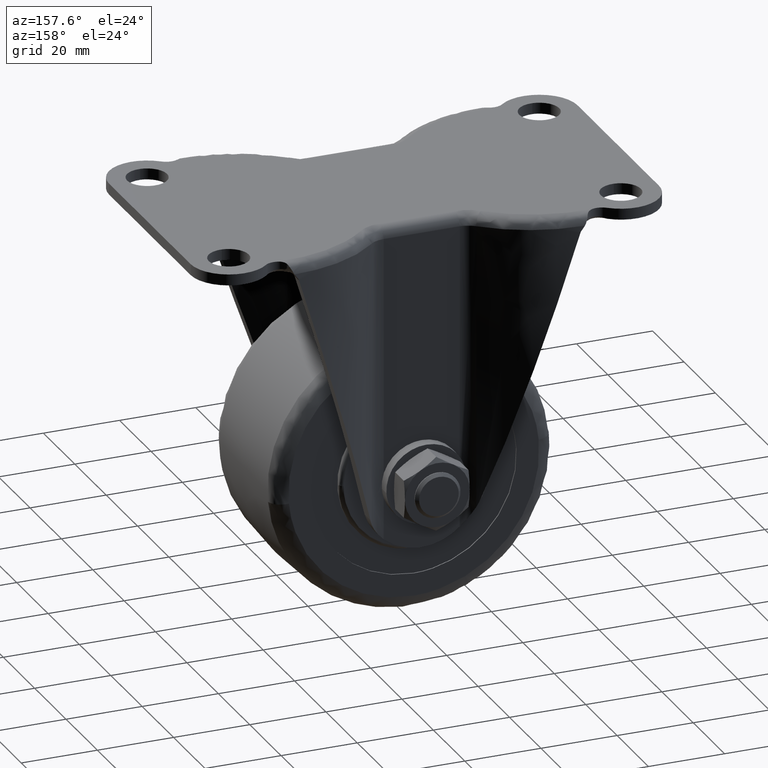
[diagram: clean part render]
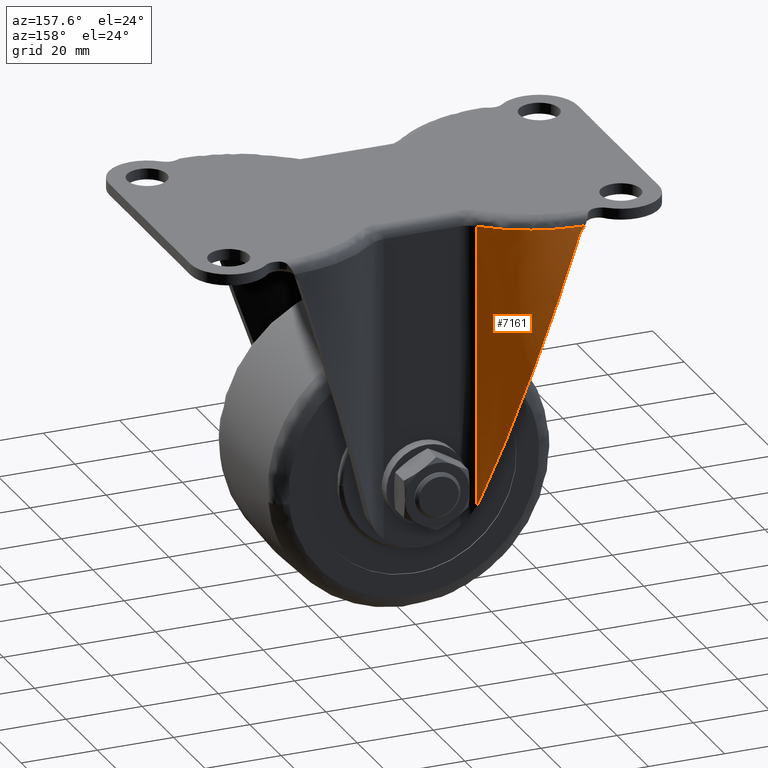
[diagram: same view with one face highlighted and labeled with its STEP entity id]
A machine part, auxiliary view. The second image highlights one B-rep face of the part: STEP entity #7161.
In plain terms, the highlighted face is a freeform B-spline surface patch.
Its self-contained STEP definition (entity closure, byte-faithful):
#6304=CARTESIAN_POINT('',(-13.742971939924139,25.495297672985849,-2.900000000000000));
#6305=VERTEX_POINT('',#6304);
#6389=CARTESIAN_POINT('',(-38.142476741519751,35.489472741861150,-2.804612686576450));
#6390=VERTEX_POINT('',#6389);
#6391=CARTESIAN_POINT('',(-38.142476741519751,35.489472741861150,-2.804612686576450));
#6392=CARTESIAN_POINT('',(-37.889986036489631,35.484194766984508,-2.805968959177427));
#6393=CARTESIAN_POINT('',(-37.378257885570967,35.466872849879479,-2.808699484473210));
#6394=CARTESIAN_POINT('',(-36.610753019532289,35.426009044726896,-2.812754199408605));
#6395=CARTESIAN_POINT('',(-35.843083032022797,35.368606712102000,-2.816764825637871));
#6396=CARTESIAN_POINT('',(-35.085228250160441,35.296141537058062,-2.820681323288400));
#6397=CARTESIAN_POINT('',(-34.337462807635752,35.209062877132851,-2.824503397319160));
#6398=CARTESIAN_POINT('',(-33.600039317631513,35.107952894323482,-2.828231125950665));
#6399=CARTESIAN_POINT('',(-32.873189423926917,34.993356110447642,-2.831864489054932));
#6400=CARTESIAN_POINT('',(-32.157124361847693,34.865823508518069,-2.835403492417540));
#6401=CARTESIAN_POINT('',(-31.452035528487990,34.725900150829290,-2.838848135003839));
#6402=CARTESIAN_POINT('',(-30.758095060417968,34.574127719651912,-2.842198417582271));
#6403=CARTESIAN_POINT('',(-30.075456417495349,34.411043170381070,-2.845454340455176));
#6404=CARTESIAN_POINT('',(-29.404254971379348,34.237178450148413,-2.848615904053464));
#6405=CARTESIAN_POINT('',(-28.744608597435040,34.053059976801457,-2.851683108787760));
#6406=CARTESIAN_POINT('',(-28.096618268777341,33.859208220863749,-2.854655955082932));
#6407=CARTESIAN_POINT('',(-27.460368651270020,33.656137299304213,-2.857534443373968));
#6408=CARTESIAN_POINT('',(-26.835928698360291,33.444354604082122,-2.860318574106646));
#6409=CARTESIAN_POINT('',(-26.223352244692311,33.224360458374768,-2.863008347740793));
#6410=CARTESIAN_POINT('',(-25.622678597505590,32.996647801279671,-2.865603764749763));
#6411=CARTESIAN_POINT('',(-25.033933124885280,32.761701899692923,-2.868104825621645));
#6412=CARTESIAN_POINT('',(-24.457127839990370,32.520000086598252,-2.870511530865213));
#6413=CARTESIAN_POINT('',(-23.892261980444950,32.272011524851813,-2.872823881003362));
#6414=CARTESIAN_POINT('',(-23.339322582133089,32.018196995577917,-2.875041876584428));
#6415=CARTESIAN_POINT('',(-22.798285046694009,31.759008710278071,-2.877165518177298));
#6416=CARTESIAN_POINT('',(-22.269113702067159,31.494890145757420,-2.879194806376559));
#6417=CARTESIAN_POINT('',(-21.751762355488239,31.226275900971920,-2.881129741804410));
#6418=CARTESIAN_POINT('',(-21.246174838388551,30.953591574903928,-2.882970325113363));
#6419=CARTESIAN_POINT('',(-20.752285542696800,30.677253664576170,-2.884716556987578));
#6420=CARTESIAN_POINT('',(-20.270019948090169,30.397669482323810,-2.886368438148669));
#6421=CARTESIAN_POINT('',(-19.799295139788459,30.115237091446112,-2.887925969355947));
#6422=CARTESIAN_POINT('',(-19.340020316515311,29.830345259384469,-2.889389151411947));
#6423=CARTESIAN_POINT('',(-18.892097288343770,29.543373427528831,-2.890757985166114));
#6424=CARTESIAN_POINT('',(-18.455420963991461,29.254691696968660,-2.892032471518658));
#6425=CARTESIAN_POINT('',(-18.029879827867301,28.964660828777379,-2.893212611419794));
#6426=CARTESIAN_POINT('',(-17.615356404664539,28.673632260133171,-2.894298405907504));
#6427=CARTESIAN_POINT('',(-17.211727718587671,28.381948127759600,-2.895289855981206));
#6428=CARTESIAN_POINT('',(-16.818865720640211,28.089941325976760,-2.896186963098024));
#6429=CARTESIAN_POINT('',(-16.436637780000481,27.797935496469339,-2.896989727389571));
#6430=CARTESIAN_POINT('',(-16.064906889861401,27.506245320323391,-2.897698154182517));
#6431=CARTESIAN_POINT('',(-15.703532857958900,27.215175762230839,-2.898312230340498));
#6432=CARTESIAN_POINT('',(-15.352369867623541,26.925025167560619,-2.898832010219794));
#6433=CARTESIAN_POINT('',(-15.011277161326319,26.636074416634909,-2.899257303716941));
#6434=CARTESIAN_POINT('',(-14.680082058804000,26.348626708164549,-2.899588808037514));
#6435=CARTESIAN_POINT('',(-14.358715773026280,26.062863781766058,-2.899824004066771));
#6436=CARTESIAN_POINT('',(-14.046722901800999,25.779367455101269,-2.899972027403961));
#6437=CARTESIAN_POINT('',(-13.843533062025060,25.589343057625889,-2.899990739269998));
#6438=CARTESIAN_POINT('',(-13.742971939924139,25.495297672985849,-2.900000000000000));
#6439=B_SPLINE_CURVE_WITH_KNOTS('',3,(#6391,#6392,#6393,#6394,#6395,#6396,#6397,#6398,#6399,#6400,#6401,#6402,#6403,#6404,#6405,#6406,#6407,#6408,#6409,#6410,#6411,#6412,#6413,#6414,#6415,#6416,#6417,#6418,#6419,#6420,#6421,#6422,#6423,#6424,#6425,#6426,#6427,#6428,#6429,#6430,#6431,#6432,#6433,#6434,#6435,#6436,#6437,#6438),.UNSPECIFIED.,.F.,.U.,(4,1,1,1,1,1,1,1,1,1,1,1,1,1,1,1,1,1,1,1,1,1,1,1,1,1,1,1,1,1,1,1,1,1,1,1,1,1,1,1,1,1,1,1,1,4),(0.029661912956623,0.056924580552807,0.084928476902993,0.112626776954118,0.140019480454794,0.167106587161676,0.193888096839647,0.220364009262002,0.246534324210660,0.272399041476372,0.297958160858954,0.323211682167526,0.348159605220767,0.372801929847195,0.397138655885444,0.421169783184585,0.444895311604446,0.468315241015961,0.491429571301549,0.514238302355503,0.536741434084419,0.558938966407648,0.580830899257782,0.602417232581171,0.623697966338483,0.644673100505299,0.665342635072755,0.685706570048229,0.705764905456089,0.725517641338487,0.744964777756221,0.764106314789671,0.782942252539800,0.801472591129248,0.819697330703510,0.837616471432219,0.855230013510536,0.872537957160671,0.889540302633531,0.906237050210522,0.922628200205525,0.938713752967050,0.954493708880605,0.969968068371299,0.985136831906701,1.0),.UNSPECIFIED.);
#6440=EDGE_CURVE('',#6390,#6305,#6439,.T.);
#7087=CARTESIAN_POINT('',(-39.114222603160187,35.499704377283287,-79.378541905505799));
#7088=CARTESIAN_POINT('',(-39.114222603160187,35.499704377283287,-0.890264456103225));
#7089=CARTESIAN_POINT('',(-23.662741238837508,35.561639504932081,-79.378541905505813));
#7090=CARTESIAN_POINT('',(-23.662741238837508,35.561639504932081,-0.890264456103225));
#7091=CARTESIAN_POINT('',(-12.798828423325686,24.574032365567906,-79.378541905505799));
#7092=CARTESIAN_POINT('',(-12.798828423325686,24.574032365567906,-0.890264456103225));
#7100=(BOUNDED_SURFACE()B_SPLINE_SURFACE(1,2,((#7087,#7089,#7091),(#7088,#7090,#7092)),.UNSPECIFIED.,.F.,.F.,.U.)B_SPLINE_SURFACE_WITH_KNOTS((2,2),(3,3),(0.0,78.488277449402588),(0.0,29.649244188923479),.UNSPECIFIED.)GEOMETRIC_REPRESENTATION_ITEM()RATIONAL_B_SPLINE_SURFACE(((1.0,0.918062766184351,0.991437447793715),(1.0,0.918062766184351,0.991437447793715)))REPRESENTATION_ITEM('')SURFACE());
#7101=CARTESIAN_POINT('',(-36.930109198206743,35.443599962050300,-4.644509690258250));
#7102=VERTEX_POINT('',#7101);
#7103=CARTESIAN_POINT('',(-37.456173698722758,35.468984315723048,-3.726271959013035));
#7104=VERTEX_POINT('',#7103);
#7105=CARTESIAN_POINT('',(-36.930109198206793,35.443599962050300,-4.644509690258220));
#7106=CARTESIAN_POINT('',(-36.984302047609923,35.446603801663137,-4.473564067512815));
#7107=CARTESIAN_POINT('',(-37.055688446164602,35.450450818744613,-4.311497440117027));
#7108=CARTESIAN_POINT('',(-37.187539123656521,35.456991070403092,-4.081178134156574));
#7109=CARTESIAN_POINT('',(-37.235653643135407,35.459299584882103,-4.006553573854863));
#7110=CARTESIAN_POINT('',(-37.314270466744503,35.462889546790827,-3.897940163884493));
#7111=CARTESIAN_POINT('',(-37.341560059353590,35.464107409123102,-3.862297167605833));
#7112=CARTESIAN_POINT('',(-37.397634708876907,35.466543394991483,-3.792982165075965));
#7113=CARTESIAN_POINT('',(-37.426498102136541,35.467765157135851,-3.759197896341000));
#7114=CARTESIAN_POINT('',(-37.456173698722793,35.468984315723070,-3.726271959013042));
#7115=B_SPLINE_CURVE_WITH_KNOTS('',3,(#7105,#7106,#7107,#7108,#7109,#7110,#7111,#7112,#7113,#7114),.UNSPECIFIED.,.F.,.U.,(4,2,2,2,4),(0.0,0.500000000000005,0.750000000000008,0.875000000000004,1.0),.UNSPECIFIED.);
#7116=EDGE_CURVE('',#7102,#7104,#7115,.T.);
#7117=ORIENTED_EDGE('',*,*,#7116,.T.);
#7118=CARTESIAN_POINT('',(-37.456173698722758,35.468984315723048,-3.726271959013035));
#7119=CARTESIAN_POINT('',(-37.506926734820503,35.470920774666318,-3.668723034729353));
#7120=CARTESIAN_POINT('',(-37.608355053182038,35.474790725890777,-3.553713351321107));
#7121=CARTESIAN_POINT('',(-37.752206948070693,35.479517290645312,-3.374205257714541));
#7122=CARTESIAN_POINT('',(-37.889553133697603,35.483533841210829,-3.189762222214774));
#7123=CARTESIAN_POINT('',(-38.020473216310073,35.486884635596432,-3.000266222600469));
#7124=CARTESIAN_POINT('',(-38.101772736429901,35.488609272626213,-2.869888526044872));
#7125=CARTESIAN_POINT('',(-38.142476741519751,35.489472741861150,-2.804612686576450));
#7126=B_SPLINE_CURVE_WITH_KNOTS('',3,(#7118,#7119,#7120,#7121,#7122,#7123,#7124,#7125),.UNSPECIFIED.,.F.,.U.,(4,1,1,1,1,4),(0.0,0.200051916379468,0.399797352503068,0.599516893783956,0.799491234760190,1.0),.UNSPECIFIED.);
#7127=EDGE_CURVE('',#7104,#6390,#7126,.T.);
#7128=ORIENTED_EDGE('',*,*,#7127,.T.);
#7129=ORIENTED_EDGE('',*,*,#6440,.T.);
#7130=CARTESIAN_POINT('',(-13.742971939924139,25.495297672985849,-77.510885095288003));
#7131=VERTEX_POINT('',#7130);
#7132=CARTESIAN_POINT('',(-13.742971939924139,25.495297672985849,-77.510885095288003));
#7133=CARTESIAN_POINT('',(-13.742971939924139,25.495297672985849,-2.900000000000000));
#7134=QUASI_UNIFORM_CURVE('',1,(#7132,#7133),.UNSPECIFIED.,.F.,.U.);
#7135=EDGE_CURVE('',#7131,#6305,#7134,.T.);
#7136=ORIENTED_EDGE('',*,*,#7135,.F.);
#7137=CARTESIAN_POINT('',(-14.298686586812821,26.007770289911651,-76.032943303354713));
#7138=VERTEX_POINT('',#7137);
#7139=CARTESIAN_POINT('',(-14.298686586812840,26.007770289911509,-76.032943303354671));
#7140=CARTESIAN_POINT('',(-14.137224722359431,25.861912428219270,-76.542257710561913));
#7141=CARTESIAN_POINT('',(-13.951234821988979,25.691351228442240,-77.034723666982515));
#7142=CARTESIAN_POINT('',(-13.742971939924130,25.495297672985831,-77.510885095288003));
#7143=QUASI_UNIFORM_CURVE('',3,(#7139,#7140,#7141,#7142),.UNSPECIFIED.,.F.,.U.);
#7144=EDGE_CURVE('',#7138,#7131,#7143,.T.);
#7145=ORIENTED_EDGE('',*,*,#7144,.F.);
#7146=CARTESIAN_POINT('',(-14.298686586812810,26.007770289911470,-76.032943303354728));
#7147=CARTESIAN_POINT('',(-23.947367851724014,34.723983385890051,-45.597196785711674));
#7148=CARTESIAN_POINT('',(-36.930109198206750,35.443599962050293,-4.644509690258250));
#7156=(BOUNDED_CURVE()B_SPLINE_CURVE(2,(#7146,#7147,#7148),.UNSPECIFIED.,.F.,.U.)CURVE()GEOMETRIC_REPRESENTATION_ITEM()QUASI_UNIFORM_CURVE()RATIONAL_B_SPLINE_CURVE((1.0,0.942872129355184,1.0))REPRESENTATION_ITEM(''));
#7157=EDGE_CURVE('',#7138,#7102,#7156,.T.);
#7158=ORIENTED_EDGE('',*,*,#7157,.T.);
#7159=EDGE_LOOP('',(#7117,#7128,#7129,#7136,#7145,#7158));
#7160=FACE_OUTER_BOUND('',#7159,.T.);
#7161=ADVANCED_FACE('',(#7160),#7100,.T.);